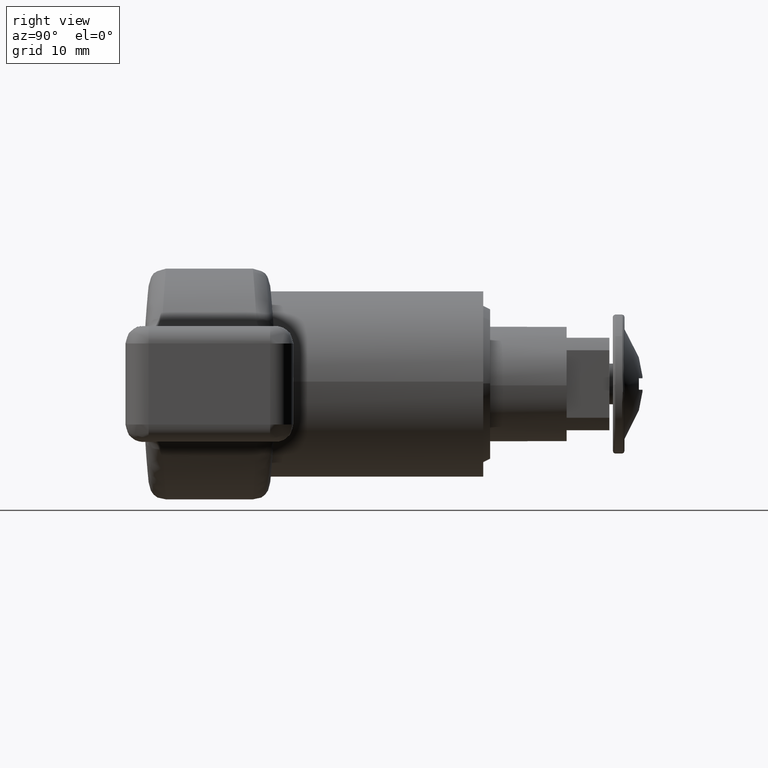
[diagram: clean part render]
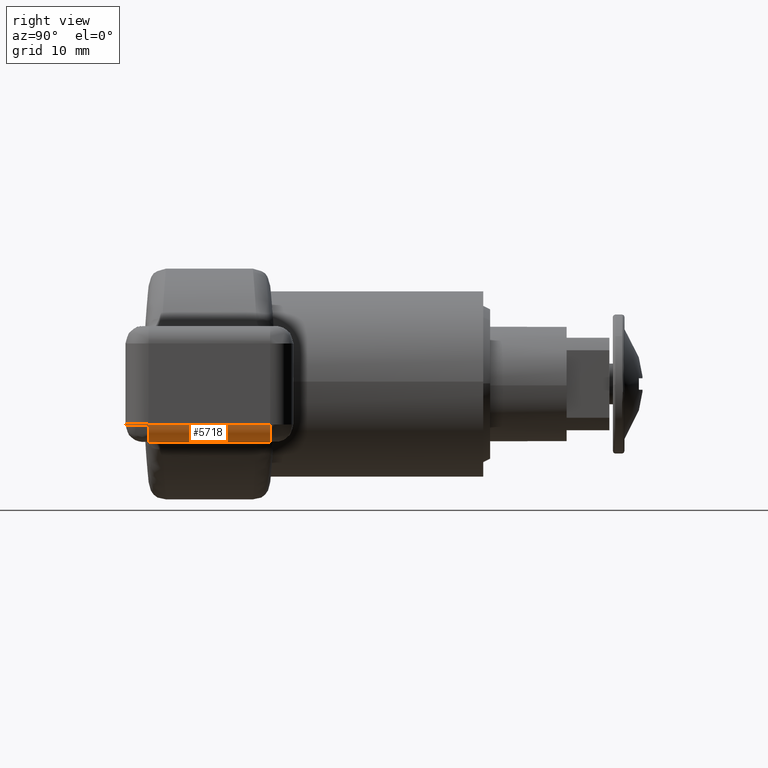
[diagram: same view with one face highlighted and labeled with its STEP entity id]
A machine part, right view. The second image highlights one B-rep face of the part: STEP entity #5718.
In plain terms, the highlighted face is a freeform B-spline surface patch.
Its self-contained STEP definition (entity closure, byte-faithful):
#3173=CARTESIAN_POINT('',(20.000000949949001,-18.400666906940302,-3.500000237479870));
#3174=VERTEX_POINT('',#3173);
#4283=CARTESIAN_POINT('',(20.000000949949001,-28.900001491419150,-3.500000237479895));
#4284=VERTEX_POINT('',#4283);
#4290=CARTESIAN_POINT('',(20.000000949949001,-28.900001491419150,-3.500000237479895));
#4291=CARTESIAN_POINT('',(20.000000949949001,-18.400666906940302,-3.500000237479870));
#4292=QUASI_UNIFORM_CURVE('',1,(#4290,#4291),.UNSPECIFIED.,.F.,.U.);
#4293=EDGE_CURVE('',#4284,#3174,#4292,.T.);
#4337=CARTESIAN_POINT('',(18.500000949949001,-18.400666906940302,-5.000000237479901));
#4338=VERTEX_POINT('',#4337);
#4339=CARTESIAN_POINT('',(20.000000949949001,-18.400666906940302,-3.500000237479895));
#4340=CARTESIAN_POINT('',(20.000000949949005,-18.400666906940302,-4.121320581039530));
#4341=CARTESIAN_POINT('',(19.560661121728831,-18.400666906940302,-4.560660409259707));
#4342=CARTESIAN_POINT('',(19.121321293508643,-18.400666906940302,-5.000000237479895));
#4343=CARTESIAN_POINT('',(18.500000949949001,-18.400666906940302,-5.000000237479895));
#4351=(BOUNDED_CURVE()B_SPLINE_CURVE(2,(#4339,#4340,#4341,#4342,#4343),.UNSPECIFIED.,.F.,.U.)B_SPLINE_CURVE_WITH_KNOTS((3,2,3),(0.0,0.500000000000000,1.0),.UNSPECIFIED.)CURVE()GEOMETRIC_REPRESENTATION_ITEM()RATIONAL_B_SPLINE_CURVE((1.0,0.923879532511288,1.0,0.923879532511288,1.0))REPRESENTATION_ITEM(''));
#4352=EDGE_CURVE('',#3174,#4338,#4351,.T.);
#4379=CARTESIAN_POINT('',(18.500000949949001,-28.900001491419101,-5.000000237479901));
#4380=VERTEX_POINT('',#4379);
#4420=CARTESIAN_POINT('',(18.500000949949001,-18.400666906940302,-5.000000237479901));
#4421=CARTESIAN_POINT('',(18.500000949949001,-28.900001491419101,-5.000000237479901));
#4422=QUASI_UNIFORM_CURVE('',1,(#4420,#4421),.UNSPECIFIED.,.F.,.U.);
#4423=EDGE_CURVE('',#4338,#4380,#4422,.T.);
#5686=CARTESIAN_POINT('',(19.999486937412339,-18.138183542328331,-3.460734815018083));
#5687=CARTESIAN_POINT('',(19.999486937412339,-29.169046940146419,-3.460734815018083));
#5688=CARTESIAN_POINT('',(20.042337626742992,-18.138183542328331,-5.097136620371071));
#5689=CARTESIAN_POINT('',(20.042337626742992,-29.169046940146416,-5.097136620371071));
#5690=CARTESIAN_POINT('',(18.408428140646720,-18.138183542328331,-4.997202435112698));
#5691=CARTESIAN_POINT('',(18.408428140646720,-29.169046940146419,-4.997202435112698));
#5699=(BOUNDED_SURFACE()B_SPLINE_SURFACE(1,2,((#5686,#5688,#5690),(#5687,#5689,#5691)),.UNSPECIFIED.,.F.,.F.,.U.)B_SPLINE_SURFACE_WITH_KNOTS((2,2),(3,3),(0.0,11.030863397818100),(0.0,2.640063185351000),.UNSPECIFIED.)GEOMETRIC_REPRESENTATION_ITEM()RATIONAL_B_SPLINE_SURFACE(((1.0,0.675590207615660,1.0),(1.0,0.675590207615660,1.0)))REPRESENTATION_ITEM('')SURFACE());
#5700=CARTESIAN_POINT('',(20.000000949949001,-28.900001491419101,-3.500000237479870));
#5701=CARTESIAN_POINT('',(20.000000949948998,-28.900001491419108,-5.000000237479871));
#5702=CARTESIAN_POINT('',(18.500000949949001,-28.900001491419101,-5.000000237479870));
#5710=(BOUNDED_CURVE()B_SPLINE_CURVE(2,(#5700,#5701,#5702),.UNSPECIFIED.,.F.,.U.)CURVE()GEOMETRIC_REPRESENTATION_ITEM()QUASI_UNIFORM_CURVE()RATIONAL_B_SPLINE_CURVE((1.0,0.707106781186548,1.0))REPRESENTATION_ITEM(''));
#5711=EDGE_CURVE('',#4284,#4380,#5710,.T.);
#5712=ORIENTED_EDGE('',*,*,#5711,.T.);
#5713=ORIENTED_EDGE('',*,*,#4423,.F.);
#5714=ORIENTED_EDGE('',*,*,#4352,.F.);
#5715=ORIENTED_EDGE('',*,*,#4293,.F.);
#5716=EDGE_LOOP('',(#5712,#5713,#5714,#5715));
#5717=FACE_OUTER_BOUND('',#5716,.T.);
#5718=ADVANCED_FACE('',(#5717),#5699,.T.);